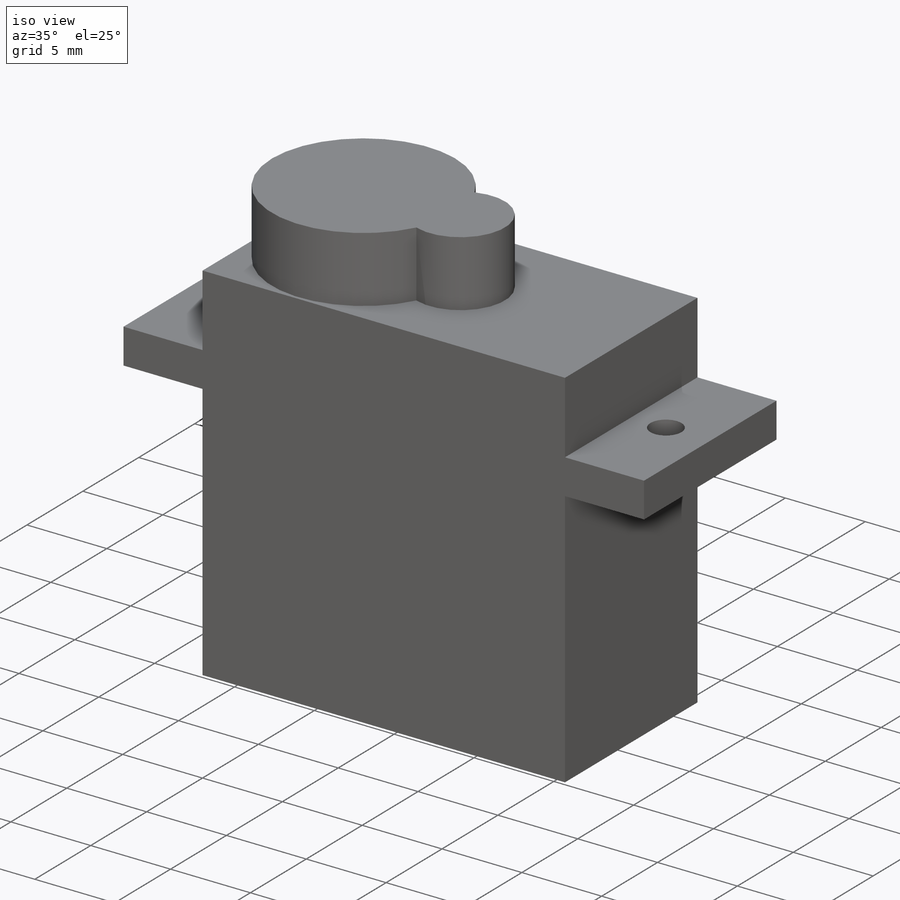
[diagram: iso view]
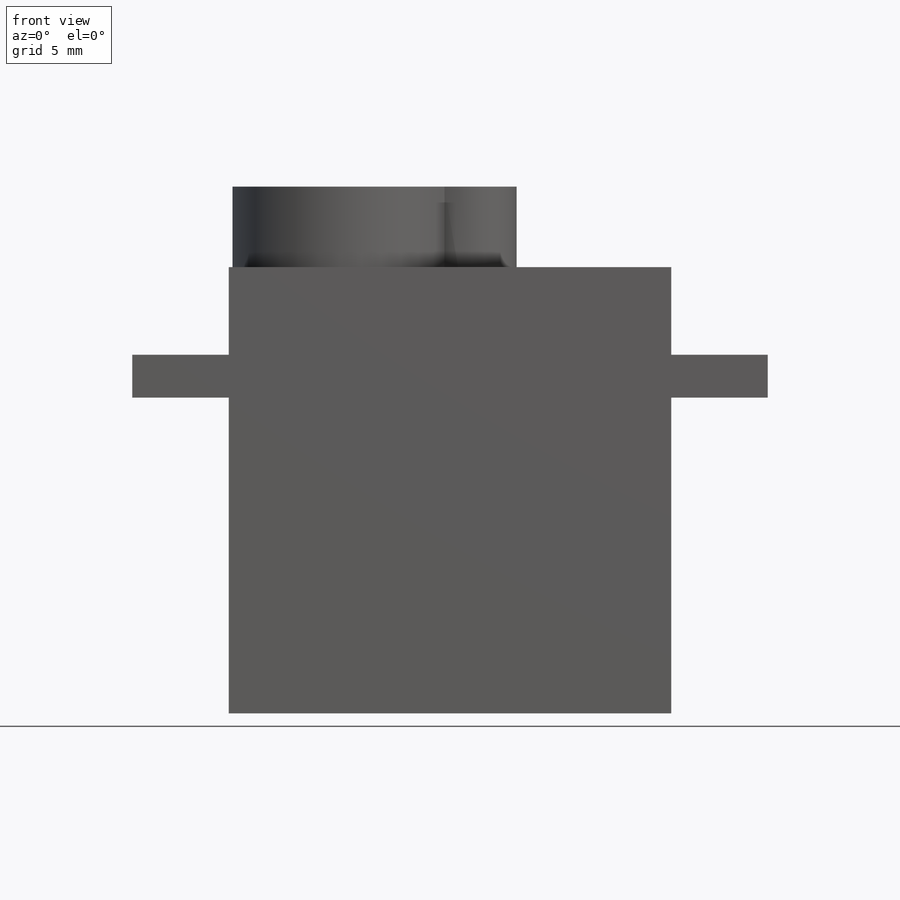
[diagram: front view]
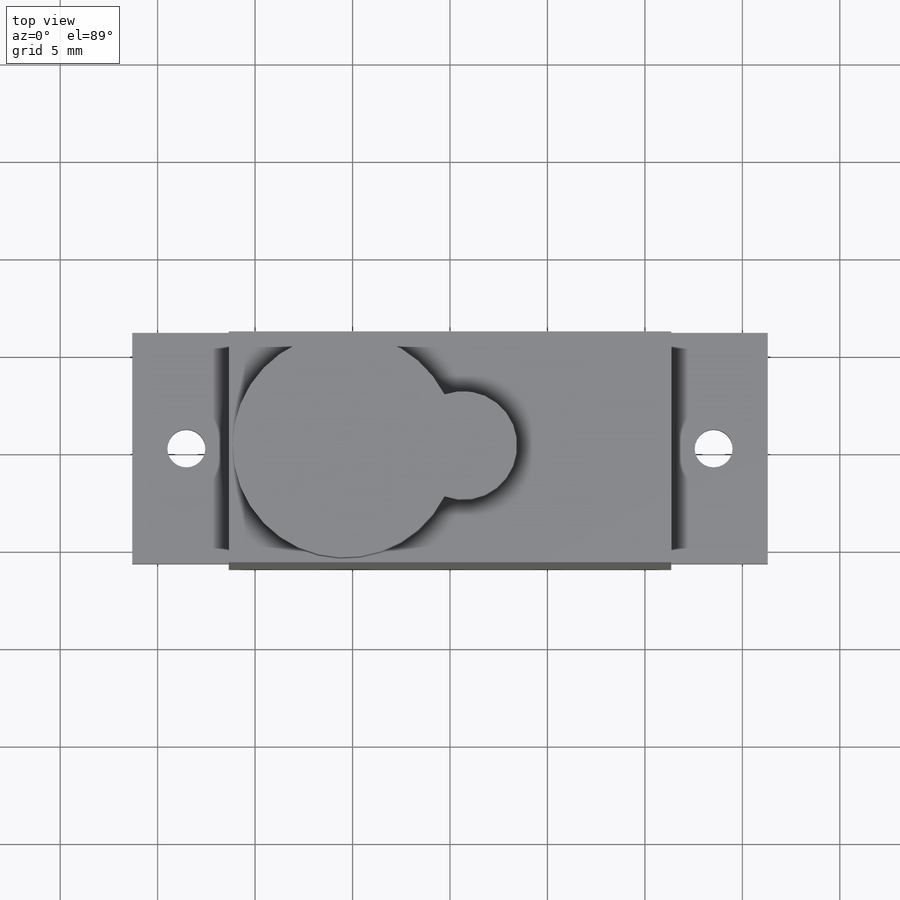
[diagram: top view]
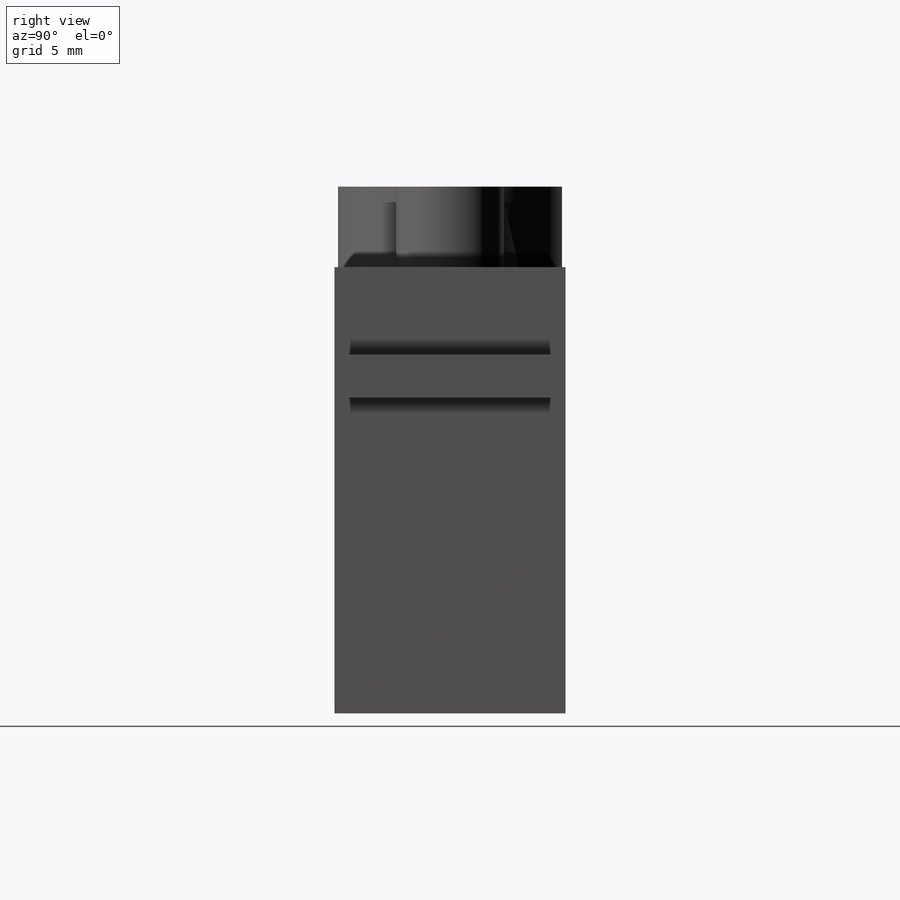
[diagram: right view]
SOLIDWORKS PART (.sldprt)
format: sldprt  version: not decoded by parser v0  size: 164,864 bytes
history: native  units: mm
features: sketch x4, extrude x3, material x1, cut_extrude x1, mirror x1 (+12 scaffold rows collapsed)
feature tree (22):
  scaffold x12  (default folders/planes/origin — collapsed)
  material  "Material <not specified>"
  sketch  "Sketch2"  dims[D1=32.6mm D2=11.85mm]
  extrude  "Boss-Extrude2"  Depth=2.2mm
  sketch  "Sketch3"  dims[D1=22.7mm]
  extrude  "Boss-Extrude3"  Depth=4.5mm
  sketch  "Sketch4"  dims[D2=1.95mm D1=2.775mm]
  cut_extrude  "Cut-Extrude1"  Depth=4.5mm
  mirror  "Mirror1"
  sketch  "Sketch5"  dims[D1=11.5mm D2=5.55mm D3=6.075mm]
  extrude  "Boss-Extrude4"  Depth=4.13mm
decode coverage: 8 of 9 modeling features carry decoded parameters
note: suppression state not decoded; provenance and decode notes live in map.json
